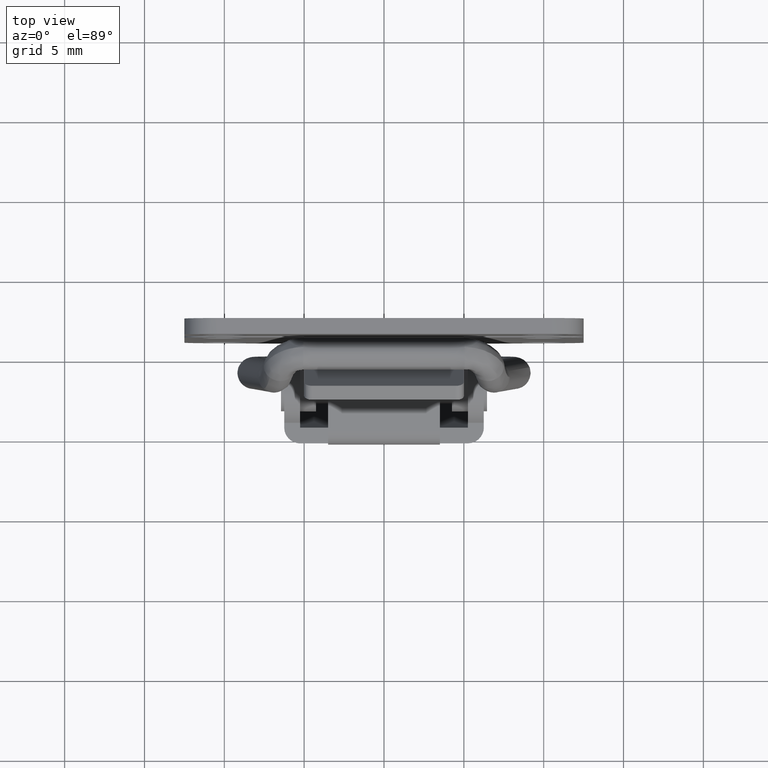
[diagram: clean part render]
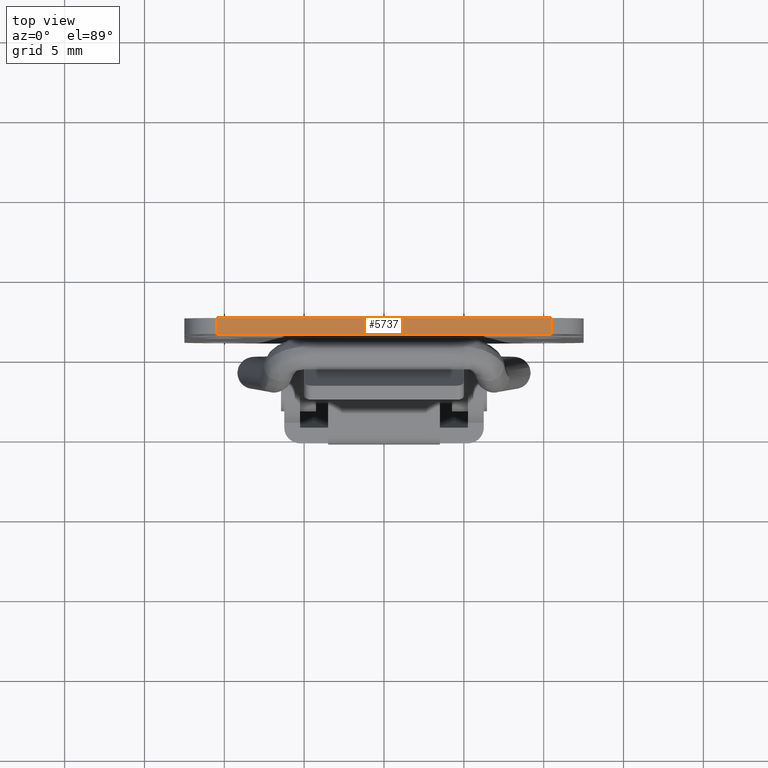
[diagram: same view with one face highlighted and labeled with its STEP entity id]
A machine part, top view. The second image highlights one B-rep face of the part: STEP entity #5737.
In plain terms, the highlighted face is a freeform B-spline surface patch.
Its self-contained STEP definition (entity closure, byte-faithful):
#5184=CARTESIAN_POINT('',(1.100000000000108,-10.500000000000000,8.500000000000000));
#5185=VERTEX_POINT('',#5184);
#5206=CARTESIAN_POINT('',(2.100000000000110,-10.500000000000000,8.500000000000000));
#5207=VERTEX_POINT('',#5206);
#5221=CARTESIAN_POINT('',(1.100000000000108,-10.500000000000000,8.500000000000000));
#5222=CARTESIAN_POINT('',(2.100000000000110,-10.500000000000000,8.500000000000000));
#5223=QUASI_UNIFORM_CURVE('',1,(#5221,#5222),.UNSPECIFIED.,.F.,.U.);
#5224=EDGE_CURVE('',#5185,#5207,#5223,.T.);
#5243=CARTESIAN_POINT('',(1.100000000000108,10.500000000000000,8.500000000000000));
#5244=VERTEX_POINT('',#5243);
#5260=CARTESIAN_POINT('',(2.100000000000110,10.500000000000000,8.500000000000000));
#5261=VERTEX_POINT('',#5260);
#5262=CARTESIAN_POINT('',(2.100000000000110,10.500000000000000,8.500000000000000));
#5263=CARTESIAN_POINT('',(1.100000000000108,10.500000000000000,8.500000000000000));
#5264=QUASI_UNIFORM_CURVE('',1,(#5262,#5263),.UNSPECIFIED.,.F.,.U.);
#5265=EDGE_CURVE('',#5261,#5244,#5264,.T.);
#5718=CARTESIAN_POINT('',(2.149949900616369,-11.548949959297930,8.500000000000000));
#5719=CARTESIAN_POINT('',(1.050050054680366,-11.548949959297930,8.500000000000000));
#5720=CARTESIAN_POINT('',(2.149949900616369,11.548950522561819,8.500000000000000));
#5721=CARTESIAN_POINT('',(1.050050054680366,11.548950522561819,8.500000000000000));
#5722=B_SPLINE_SURFACE_WITH_KNOTS('',1,1,((#5718,#5720),(#5719,#5721)),.UNSPECIFIED.,.F.,.F.,.U.,(2,2),(2,2),(0.041708416153118,0.958291621099785),(0.0,23.097900481859750),.UNSPECIFIED.);
#5723=CARTESIAN_POINT('',(2.100000000000110,10.500000000000000,8.500000000000000));
#5724=CARTESIAN_POINT('',(2.100000000000110,-10.500000000000000,8.500000000000000));
#5725=QUASI_UNIFORM_CURVE('',1,(#5723,#5724),.UNSPECIFIED.,.F.,.U.);
#5726=EDGE_CURVE('',#5261,#5207,#5725,.T.);
#5727=ORIENTED_EDGE('',*,*,#5726,.F.);
#5728=ORIENTED_EDGE('',*,*,#5265,.T.);
#5729=CARTESIAN_POINT('',(1.100000000000108,10.500000000000000,8.500000000000000));
#5730=CARTESIAN_POINT('',(1.100000000000108,-10.500000000000000,8.500000000000000));
#5731=QUASI_UNIFORM_CURVE('',1,(#5729,#5730),.UNSPECIFIED.,.F.,.U.);
#5732=EDGE_CURVE('',#5244,#5185,#5731,.T.);
#5733=ORIENTED_EDGE('',*,*,#5732,.T.);
#5734=ORIENTED_EDGE('',*,*,#5224,.T.);
#5735=EDGE_LOOP('',(#5727,#5728,#5733,#5734));
#5736=FACE_OUTER_BOUND('',#5735,.T.);
#5737=ADVANCED_FACE('',(#5736),#5722,.F.);